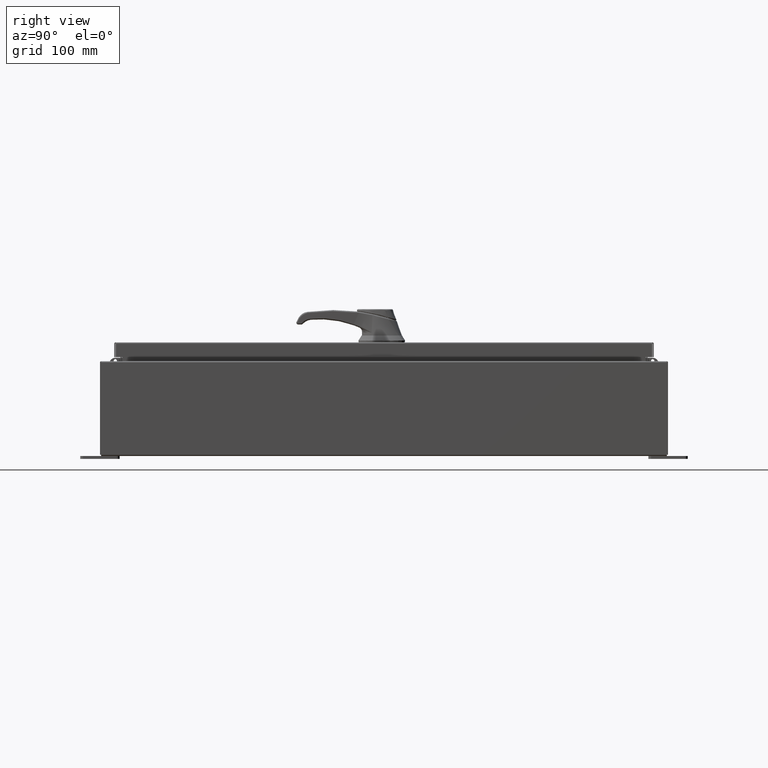
[diagram: clean part render]
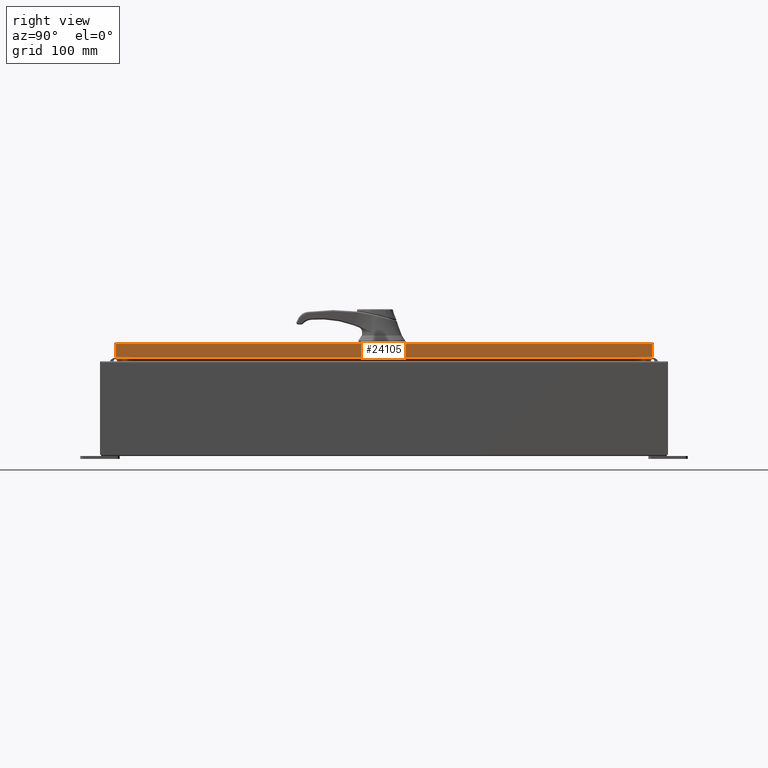
[diagram: same view with one face highlighted and labeled with its STEP entity id]
A machine part, right view. The second image highlights one B-rep face of the part: STEP entity #24105.
In plain terms, the highlighted planar face has unit normal (1, 0, 0).
Its self-contained STEP definition (entity closure, byte-faithful):
#2347 = CARTESIAN_POINT ( 'NONE',  ( 11.07799999999999600, 17.00515786437627600, -0.08770000000000008300 ) ) ;
#3930 = EDGE_CURVE ( 'NONE', #11603, #100425, #120052, .T. ) ;
#4575 = VERTEX_POINT ( 'NONE', #55899 ) ;
#4846 = FACE_OUTER_BOUND ( 'NONE', #70381, .T. ) ;
#9093 = LINE ( 'NONE', #102828, #31600 ) ;
#11603 = VERTEX_POINT ( 'NONE', #116226 ) ;
#16076 = ORIENTED_EDGE ( 'NONE', *, *, #77158, .F. ) ;
#17453 = VERTEX_POINT ( 'NONE', #2347 ) ;
#20598 = CARTESIAN_POINT ( 'NONE',  ( 11.07799999999999600, 0.0000000000000000000, -0.08770000000000008300 ) ) ;
#24105 = ADVANCED_FACE ( 'NONE', ( #4846 ), #25984, .T. ) ;
#25984 = PLANE ( 'NONE',  #84241 ) ;
#30236 = DIRECTION ( 'NONE',  ( 0.0000000000000000000, -1.000000000000000000, 0.0000000000000000000 ) ) ;
#31600 = VECTOR ( 'NONE', #102425, 39.37007874015748100 ) ;
#34502 = EDGE_CURVE ( 'NONE', #11603, #17453, #119145, .T. ) ;
#44479 = VECTOR ( 'NONE', #87413, 39.37007874015748100 ) ;
#45322 = CARTESIAN_POINT ( 'NONE',  ( 11.07799999999999600, 0.0000000000000000000, 2.831496158075104400E-014 ) ) ;
#46296 = DIRECTION ( 'NONE',  ( -2.532419924601866100E-015, -6.982962677686265900E-015, 1.000000000000000000 ) ) ;
#47236 = LINE ( 'NONE', #20598, #113887 ) ;
#55899 = CARTESIAN_POINT ( 'NONE',  ( 11.07799999999999600, -17.00515786437626500, -0.08770000000000008300 ) ) ;
#64414 = DIRECTION ( 'NONE',  ( 2.532419924601866100E-015, 0.0000000000000000000, -1.000000000000000000 ) ) ;
#67006 = ORIENTED_EDGE ( 'NONE', *, *, #34502, .T. ) ;
#70381 = EDGE_LOOP ( 'NONE', ( #16076, #70634, #67006, #83751 ) ) ;
#70634 = ORIENTED_EDGE ( 'NONE', *, *, #3930, .F. ) ;
#77158 = EDGE_CURVE ( 'NONE', #100425, #4575, #9093, .T. ) ;
#83751 = ORIENTED_EDGE ( 'NONE', *, *, #103021, .T. ) ;
#83996 = CARTESIAN_POINT ( 'NONE',  ( 11.07799999999999600, 17.00515786437627600, 1.470613442758536900E-013 ) ) ;
#84241 = AXIS2_PLACEMENT_3D ( 'NONE', #45322, #121064, #64414 ) ;
#87413 = DIRECTION ( 'NONE',  ( 0.0000000000000000000, -1.000000000000000000, 0.0000000000000000000 ) ) ;
#100425 = VERTEX_POINT ( 'NONE', #102777 ) ;
#102425 = DIRECTION ( 'NONE',  ( -2.532419924601866100E-015, -6.982962677686265900E-015, 1.000000000000000000 ) ) ;
#102777 = CARTESIAN_POINT ( 'NONE',  ( 11.07799999999999800, -17.00515786437625800, -0.9376999999999997600 ) ) ;
#102828 = CARTESIAN_POINT ( 'NONE',  ( 11.07799999999999600, -17.00515786437626500, -0.07469999999999980800 ) ) ;
#103021 = EDGE_CURVE ( 'NONE', #17453, #4575, #47236, .T. ) ;
#113887 = VECTOR ( 'NONE', #30236, 39.37007874015748100 ) ;
#116226 = CARTESIAN_POINT ( 'NONE',  ( 11.07799999999999800, 17.00515786437628000, -0.9376999999999997600 ) ) ;
#119145 = LINE ( 'NONE', #83996, #122096 ) ;
#119535 = CARTESIAN_POINT ( 'NONE',  ( 11.07799999999999800, -17.09399999999999800, -0.9376999999999997600 ) ) ;
#120052 = LINE ( 'NONE', #119535, #44479 ) ;
#121064 = DIRECTION ( 'NONE',  ( 1.000000000000000000, 0.0000000000000000000, 2.532419924601866100E-015 ) ) ;
#122096 = VECTOR ( 'NONE', #46296, 39.37007874015748100 ) ;